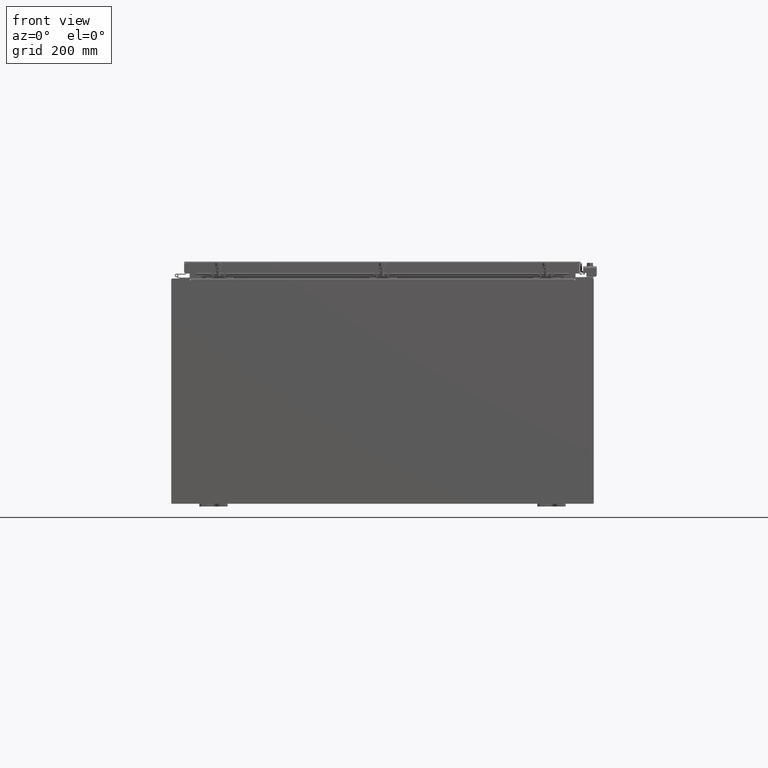
[diagram: clean part render]
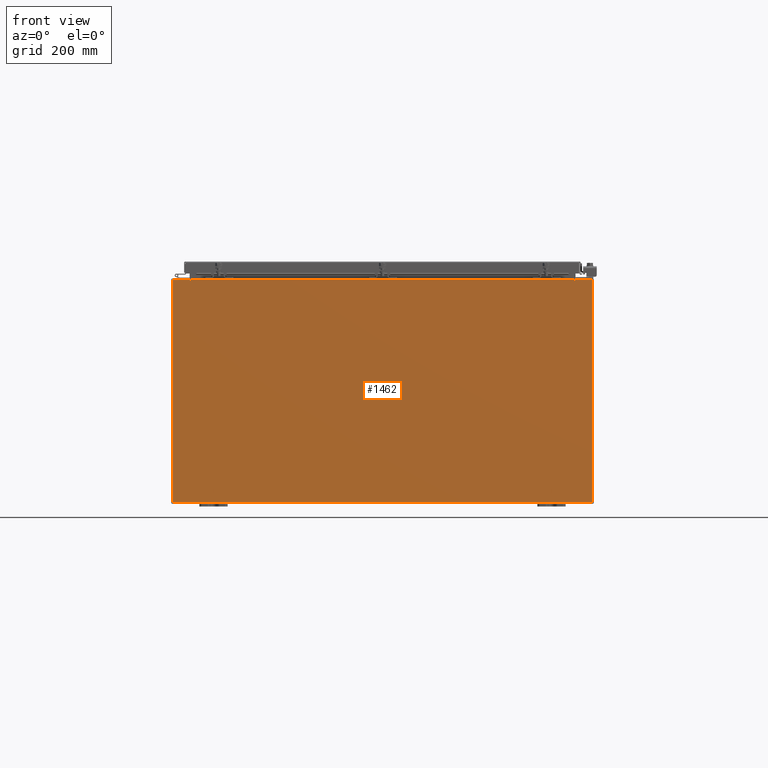
[diagram: same view with one face highlighted and labeled with its STEP entity id]
A machine part, front view. The second image highlights one B-rep face of the part: STEP entity #1462.
In plain terms, the highlighted planar face has unit normal (-0, 1, -0).
Its self-contained STEP definition (entity closure, byte-faithful):
#217 = ORIENTED_EDGE ( 'NONE', *, *, #19420, .T. ) ;
#728 = DIRECTION ( 'NONE',  ( 0.0000000000000000000, -0.0000000000000000000, -1.000000000000000000 ) ) ;
#911 = EDGE_LOOP ( 'NONE', ( #18236, #8381, #22225, #217, #25683, #19564, #30189, #13106, #39737, #7297, #34192, #6638 ) ) ;
#1146 = EDGE_CURVE ( 'NONE', #2751, #18110, #41174, .T. ) ;
#1210 = EDGE_CURVE ( 'NONE', #3022, #35160, #29260, .T. ) ;
#1459 = CARTESIAN_POINT ( 'NONE',  ( 13.67455000000000200, 0.0000000000000000000, 7.874949999999999200 ) ) ;
#1462 = ADVANCED_FACE ( 'NONE', ( #21682 ), #29019, .F. ) ;
#1476 = CARTESIAN_POINT ( 'NONE',  ( -14.92529999999999800, 0.0000000000000000000, -7.925300000000000000 ) ) ;
#1619 = EDGE_CURVE ( 'NONE', #23789, #35160, #19524, .T. ) ;
#1985 = DIRECTION ( 'NONE',  ( 0.0000000000000000000, 0.0000000000000000000, -1.000000000000000000 ) ) ;
#2751 = VERTEX_POINT ( 'NONE', #1459 ) ;
#2767 = CARTESIAN_POINT ( 'NONE',  ( -13.67454999999999500, 0.0000000000000000000, 7.874949999999999200 ) ) ;
#3022 = VERTEX_POINT ( 'NONE', #2767 ) ;
#3131 = VECTOR ( 'NONE', #34111, 39.37007874015748100 ) ;
#5811 = EDGE_CURVE ( 'NONE', #14108, #3022, #20203, .T. ) ;
#6638 = ORIENTED_EDGE ( 'NONE', *, *, #1619, .T. ) ;
#7053 = CARTESIAN_POINT ( 'NONE',  ( -14.92529999999999800, 0.0000000000000000000, 7.925300000000000000 ) ) ;
#7297 = ORIENTED_EDGE ( 'NONE', *, *, #10759, .T. ) ;
#7756 = LINE ( 'NONE', #9933, #13836 ) ;
#7976 = DIRECTION ( 'NONE',  ( 0.0000000000000000000, 0.0000000000000000000, -1.000000000000000000 ) ) ;
#8337 = CARTESIAN_POINT ( 'NONE',  ( 13.63720000000000400, 0.0000000000000000000, 7.912299999999999200 ) ) ;
#8381 = ORIENTED_EDGE ( 'NONE', *, *, #5811, .F. ) ;
#8754 = EDGE_CURVE ( 'NONE', #26321, #30603, #34071, .T. ) ;
#9207 = VERTEX_POINT ( 'NONE', #8337 ) ;
#9286 = CARTESIAN_POINT ( 'NONE',  ( -13.67454999999999500, 0.0000000000000000000, 7.925300000000000000 ) ) ;
#9624 = DIRECTION ( 'NONE',  ( -4.340572780400193600E-014, 0.0000000000000000000, -1.000000000000000000 ) ) ;
#9818 = VECTOR ( 'NONE', #36796, 39.37007874015748100 ) ;
#9933 = CARTESIAN_POINT ( 'NONE',  ( 13.67454999999966100, -0.0000000000000000000, -5.935537951421999000E-013 ) ) ;
#10179 = LINE ( 'NONE', #39781, #9818 ) ;
#10583 = EDGE_CURVE ( 'NONE', #38207, #2751, #7756, .T. ) ;
#10667 = EDGE_CURVE ( 'NONE', #18110, #9207, #11636, .T. ) ;
#10759 = EDGE_CURVE ( 'NONE', #30603, #38058, #10179, .T. ) ;
#11636 = LINE ( 'NONE', #35026, #11872 ) ;
#11872 = VECTOR ( 'NONE', #35162, 39.37007874015748100 ) ;
#12001 = DIRECTION ( 'NONE',  ( 1.000000000000000000, 0.0000000000000000000, -7.321388497823864400E-017 ) ) ;
#13106 = ORIENTED_EDGE ( 'NONE', *, *, #30330, .T. ) ;
#13836 = VECTOR ( 'NONE', #9624, 39.37007874015748100 ) ;
#14108 = VERTEX_POINT ( 'NONE', #40709 ) ;
#14350 = DIRECTION ( 'NONE',  ( 0.0000000000000000000, 0.0000000000000000000, -1.000000000000000000 ) ) ;
#15443 = CARTESIAN_POINT ( 'NONE',  ( -13.63719999999999600, 3.756290991288361700E-016, 7.912300000000006300 ) ) ;
#16258 = CARTESIAN_POINT ( 'NONE',  ( -13.63719999999999600, -0.0000000000000000000, 0.0000000000000000000 ) ) ;
#18110 = VERTEX_POINT ( 'NONE', #39877 ) ;
#18236 = ORIENTED_EDGE ( 'NONE', *, *, #1210, .F. ) ;
#18720 = CARTESIAN_POINT ( 'NONE',  ( 14.92530000000000200, 0.0000000000000000000, 7.925299999999997300 ) ) ;
#18827 = LINE ( 'NONE', #7053, #26553 ) ;
#19420 = EDGE_CURVE ( 'NONE', #34476, #9207, #30631, .T. ) ;
#19524 = LINE ( 'NONE', #32001, #20432 ) ;
#19564 = ORIENTED_EDGE ( 'NONE', *, *, #1146, .F. ) ;
#19770 = EDGE_CURVE ( 'NONE', #34476, #14108, #36779, .T. ) ;
#20203 = CIRCLE ( 'NONE', #24904, 0.01867499999999949400 ) ;
#20432 = VECTOR ( 'NONE', #12001, 39.37007874015748100 ) ;
#20873 = DIRECTION ( 'NONE',  ( 1.000000000000000000, 0.0000000000000000000, -7.321388497823864400E-017 ) ) ;
#20939 = AXIS2_PLACEMENT_3D ( 'NONE', #36517, #23991, #35739 ) ;
#21024 = CARTESIAN_POINT ( 'NONE',  ( -13.65587499999999600, 0.0000000000000000000, 7.874949999999999200 ) ) ;
#21060 = CARTESIAN_POINT ( 'NONE',  ( -14.92529999999999800, 0.0000000000000000000, 7.925300000000000000 ) ) ;
#21503 = DIRECTION ( 'NONE',  ( 0.0000000000000000000, -1.000000000000000000, 0.0000000000000000000 ) ) ;
#21682 = FACE_OUTER_BOUND ( 'NONE', #911, .T. ) ;
#22225 = ORIENTED_EDGE ( 'NONE', *, *, #19770, .F. ) ;
#23674 = CARTESIAN_POINT ( 'NONE',  ( 0.0000000000000000000, 0.0000000000000000000, 0.0000000000000000000 ) ) ;
#23789 = VERTEX_POINT ( 'NONE', #21060 ) ;
#23991 = DIRECTION ( 'NONE',  ( -0.0000000000000000000, 1.000000000000000000, -0.0000000000000000000 ) ) ;
#24904 = AXIS2_PLACEMENT_3D ( 'NONE', #21024, #36797, #7976 ) ;
#25338 = CARTESIAN_POINT ( 'NONE',  ( 14.92530000000000200, 0.0000000000000000000, 7.925299999999997300 ) ) ;
#25426 = EDGE_CURVE ( 'NONE', #38058, #23789, #32485, .T. ) ;
#25683 = ORIENTED_EDGE ( 'NONE', *, *, #10667, .F. ) ;
#26321 = VERTEX_POINT ( 'NONE', #18720 ) ;
#26553 = VECTOR ( 'NONE', #20873, 39.37007874015748100 ) ;
#27961 = DIRECTION ( 'NONE',  ( 0.0000000000000000000, 0.0000000000000000000, 1.000000000000000000 ) ) ;
#29019 = PLANE ( 'NONE',  #38232 ) ;
#29138 = VECTOR ( 'NONE', #27961, 39.37007874015748100 ) ;
#29260 = LINE ( 'NONE', #42464, #29138 ) ;
#30189 = ORIENTED_EDGE ( 'NONE', *, *, #10583, .F. ) ;
#30330 = EDGE_CURVE ( 'NONE', #38207, #26321, #18827, .T. ) ;
#30603 = VERTEX_POINT ( 'NONE', #31952 ) ;
#30631 = LINE ( 'NONE', #31878, #3131 ) ;
#31878 = CARTESIAN_POINT ( 'NONE',  ( -13.63719999999999800, 3.756290991288361700E-016, 7.912300000000006300 ) ) ;
#31952 = CARTESIAN_POINT ( 'NONE',  ( 14.92530000000000200, 0.0000000000000000000, -7.925300000000000000 ) ) ;
#31977 = VECTOR ( 'NONE', #14350, 39.37007874015748100 ) ;
#32001 = CARTESIAN_POINT ( 'NONE',  ( -14.92529999999999800, 0.0000000000000000000, 7.925300000000000000 ) ) ;
#32485 = LINE ( 'NONE', #32551, #33619 ) ;
#32551 = CARTESIAN_POINT ( 'NONE',  ( -14.92529999999999800, 0.0000000000000000000, 7.925300000000000000 ) ) ;
#33619 = VECTOR ( 'NONE', #34131, 39.37007874015748100 ) ;
#34071 = LINE ( 'NONE', #25338, #37151 ) ;
#34111 = DIRECTION ( 'NONE',  ( 1.000000000000000000, 0.0000000000000000000, 0.0000000000000000000 ) ) ;
#34131 = DIRECTION ( 'NONE',  ( -0.0000000000000000000, -0.0000000000000000000, 1.000000000000000000 ) ) ;
#34192 = ORIENTED_EDGE ( 'NONE', *, *, #25426, .T. ) ;
#34476 = VERTEX_POINT ( 'NONE', #15443 ) ;
#35026 = CARTESIAN_POINT ( 'NONE',  ( 13.63720000000000400, 0.0000000000000000000, 0.0000000000000000000 ) ) ;
#35160 = VERTEX_POINT ( 'NONE', #9286 ) ;
#35162 = DIRECTION ( 'NONE',  ( 0.0000000000000000000, 0.0000000000000000000, 1.000000000000000000 ) ) ;
#35739 = DIRECTION ( 'NONE',  ( 0.0000000000000000000, 0.0000000000000000000, -1.000000000000000000 ) ) ;
#36517 = CARTESIAN_POINT ( 'NONE',  ( 13.65587500000000200, 0.0000000000000000000, 7.874949999999999200 ) ) ;
#36779 = LINE ( 'NONE', #16258, #31977 ) ;
#36796 = DIRECTION ( 'NONE',  ( -1.000000000000000000, -0.0000000000000000000, -0.0000000000000000000 ) ) ;
#36797 = DIRECTION ( 'NONE',  ( -0.0000000000000000000, 1.000000000000000000, -0.0000000000000000000 ) ) ;
#37151 = VECTOR ( 'NONE', #1985, 39.37007874015748100 ) ;
#38058 = VERTEX_POINT ( 'NONE', #1476 ) ;
#38207 = VERTEX_POINT ( 'NONE', #39322 ) ;
#38232 = AXIS2_PLACEMENT_3D ( 'NONE', #23674, #21503, #728 ) ;
#39322 = CARTESIAN_POINT ( 'NONE',  ( 13.67455000000000400, 0.0000000000000000000, 7.925299999999997300 ) ) ;
#39737 = ORIENTED_EDGE ( 'NONE', *, *, #8754, .T. ) ;
#39781 = CARTESIAN_POINT ( 'NONE',  ( -14.92529999999999800, 0.0000000000000000000, -7.925300000000000000 ) ) ;
#39877 = CARTESIAN_POINT ( 'NONE',  ( 13.63720000000000400, 0.0000000000000000000, 7.874949999999999200 ) ) ;
#40709 = CARTESIAN_POINT ( 'NONE',  ( -13.63719999999999600, -0.0000000000000000000, 7.874949999999999200 ) ) ;
#41174 = CIRCLE ( 'NONE', #20939, 0.01867499999999949400 ) ;
#42464 = CARTESIAN_POINT ( 'NONE',  ( -13.67454999999999500, -0.0000000000000000000, 0.0000000000000000000 ) ) ;